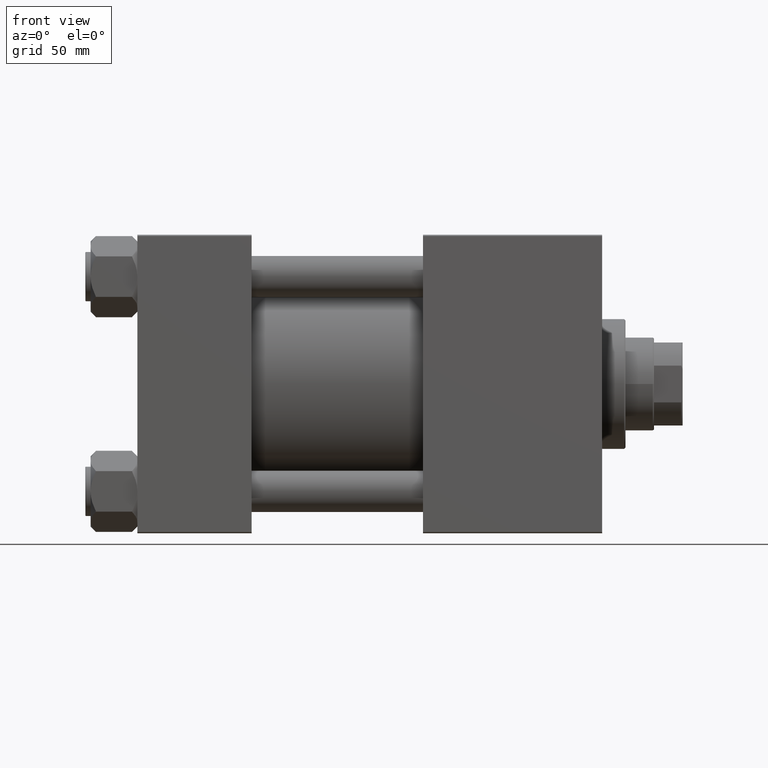
[diagram: clean part render]
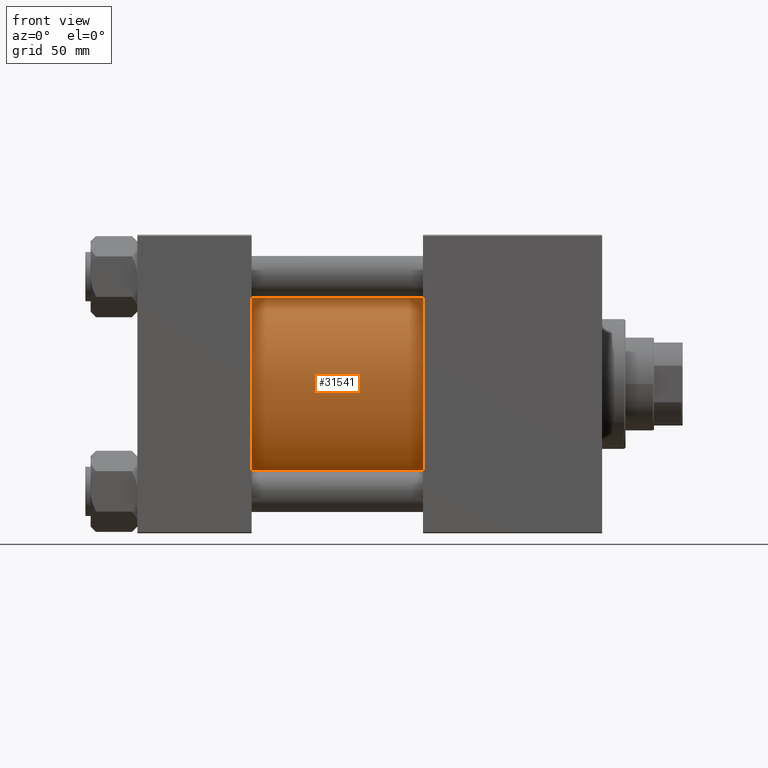
[diagram: same view with one face highlighted and labeled with its STEP entity id]
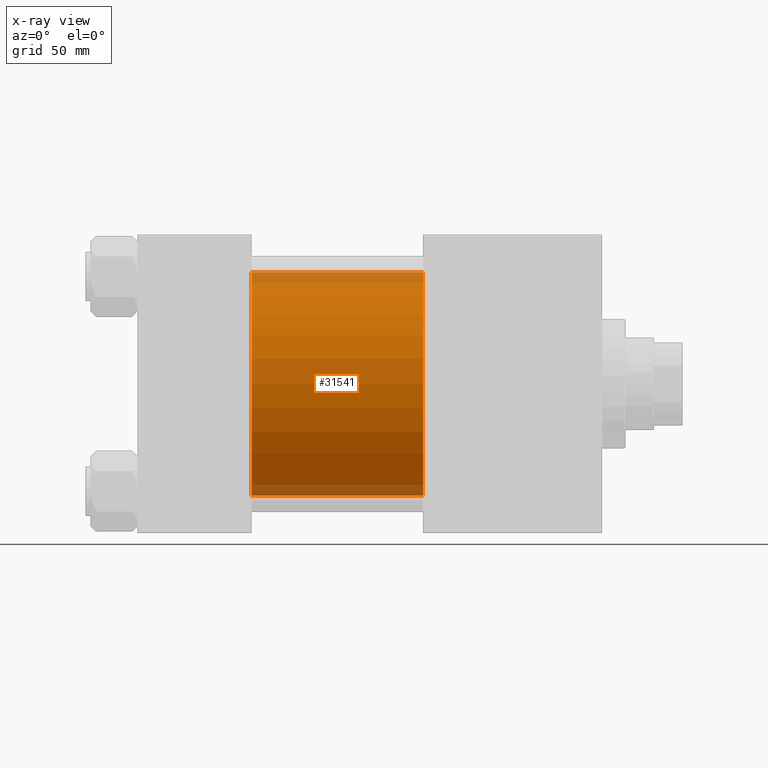
[diagram: x-ray of the same camera — body ghosted, the highlighted face saturated]
A machine part, front view. The second image highlights one B-rep face of the part: STEP entity #31541.
The next image is the same camera in x-ray: the body ghosted, the highlighted face saturated — about 9% of this face is hidden behind the body in this view.
In plain terms, the highlighted cylindrical surface (partial cylindrical patch) has radius 43 mm, axis along (-1, -0, -0).
Its self-contained STEP definition (entity closure, byte-faithful):
#3679 = CARTESIAN_POINT ( 'NONE',  ( 44.00000000000000000, 2.663896022368408223E-15, -43.00000000000000000 ) ) ;
#4008 = CARTESIAN_POINT ( 'NONE',  ( 44.00000000000000000, -2.602085213965210642E-15, 43.00000000000000000 ) ) ;
#12279 = VECTOR ( 'NONE', #36811, 1000.000000000000000 ) ;
#12655 = ORIENTED_EDGE ( 'NONE', *, *, #38357, .F. ) ;
#14193 = CARTESIAN_POINT ( 'NONE',  ( 110.0000000000000000, 2.663896022368408223E-15, -43.00000000000000000 ) ) ;
#14967 = ORIENTED_EDGE ( 'NONE', *, *, #22403, .T. ) ;
#15955 = VERTEX_POINT ( 'NONE', #47493 ) ;
#16623 = CARTESIAN_POINT ( 'NONE',  ( 110.0000000000000000, -2.602085213965210642E-15, 43.00000000000000000 ) ) ;
#17851 = CIRCLE ( 'NONE', #38297, 43.00000000000000000 ) ;
#18221 = ORIENTED_EDGE ( 'NONE', *, *, #30246, .T. ) ;
#18548 = DIRECTION ( 'NONE',  ( -1.000000000000000000, -0.000000000000000000, -0.000000000000000000 ) ) ;
#19605 = CARTESIAN_POINT ( 'NONE',  ( 110.0000000000000000, -2.602085213965210642E-15, 0.000000000000000000 ) ) ;
#22201 = CARTESIAN_POINT ( 'NONE',  ( 44.00000000000000000, -2.602085213965210642E-15, 0.000000000000000000 ) ) ;
#22403 = EDGE_CURVE ( 'NONE', #50061, #41493, #17851, .T. ) ;
#23445 = CYLINDRICAL_SURFACE ( 'NONE', #24612, 43.00000000000000000 ) ;
#24182 = DIRECTION ( 'NONE',  ( -1.000000000000000000, -0.000000000000000000, -0.000000000000000000 ) ) ;
#24383 = CIRCLE ( 'NONE', #25183, 43.00000000000000000 ) ;
#24612 = AXIS2_PLACEMENT_3D ( 'NONE', #19605, #24182, #39036 ) ;
#25183 = AXIS2_PLACEMENT_3D ( 'NONE', #47600, #34659, #30572 ) ;
#26064 = VERTEX_POINT ( 'NONE', #50129 ) ;
#26668 = EDGE_CURVE ( 'NONE', #26064, #41493, #30340, .T. ) ;
#30246 = EDGE_CURVE ( 'NONE', #15955, #50061, #40644, .T. ) ;
#30340 = LINE ( 'NONE', #14193, #35059 ) ;
#30572 = DIRECTION ( 'NONE',  ( 0.000000000000000000, 0.000000000000000000, -1.000000000000000000 ) ) ;
#30641 = DIRECTION ( 'NONE',  ( 0.000000000000000000, 0.000000000000000000, 1.000000000000000000 ) ) ;
#31541 = ADVANCED_FACE ( 'NONE', ( #47212 ), #23445, .T. ) ;
#32596 = ORIENTED_EDGE ( 'NONE', *, *, #26668, .F. ) ;
#33264 = EDGE_LOOP ( 'NONE', ( #32596, #12655, #18221, #14967 ) ) ;
#34659 = DIRECTION ( 'NONE',  ( 1.000000000000000000, 0.000000000000000000, 0.000000000000000000 ) ) ;
#35059 = VECTOR ( 'NONE', #18548, 1000.000000000000000 ) ;
#36811 = DIRECTION ( 'NONE',  ( -1.000000000000000000, -0.000000000000000000, -0.000000000000000000 ) ) ;
#37789 = DIRECTION ( 'NONE',  ( 1.000000000000000000, -0.000000000000000000, 0.000000000000000000 ) ) ;
#38297 = AXIS2_PLACEMENT_3D ( 'NONE', #22201, #37789, #30641 ) ;
#38357 = EDGE_CURVE ( 'NONE', #15955, #26064, #24383, .T. ) ;
#39036 = DIRECTION ( 'NONE',  ( 0.000000000000000000, 0.000000000000000000, 1.000000000000000000 ) ) ;
#40644 = LINE ( 'NONE', #16623, #12279 ) ;
#41493 = VERTEX_POINT ( 'NONE', #3679 ) ;
#47212 = FACE_OUTER_BOUND ( 'NONE', #33264, .T. ) ;
#47493 = CARTESIAN_POINT ( 'NONE',  ( 110.0000000000000000, -2.602085213965210642E-15, 43.00000000000000000 ) ) ;
#47600 = CARTESIAN_POINT ( 'NONE',  ( 110.0000000000000000, -2.602085213965210642E-15, 0.000000000000000000 ) ) ;
#50061 = VERTEX_POINT ( 'NONE', #4008 ) ;
#50129 = CARTESIAN_POINT ( 'NONE',  ( 110.0000000000000000, 2.663896022368408223E-15, -43.00000000000000000 ) ) ;